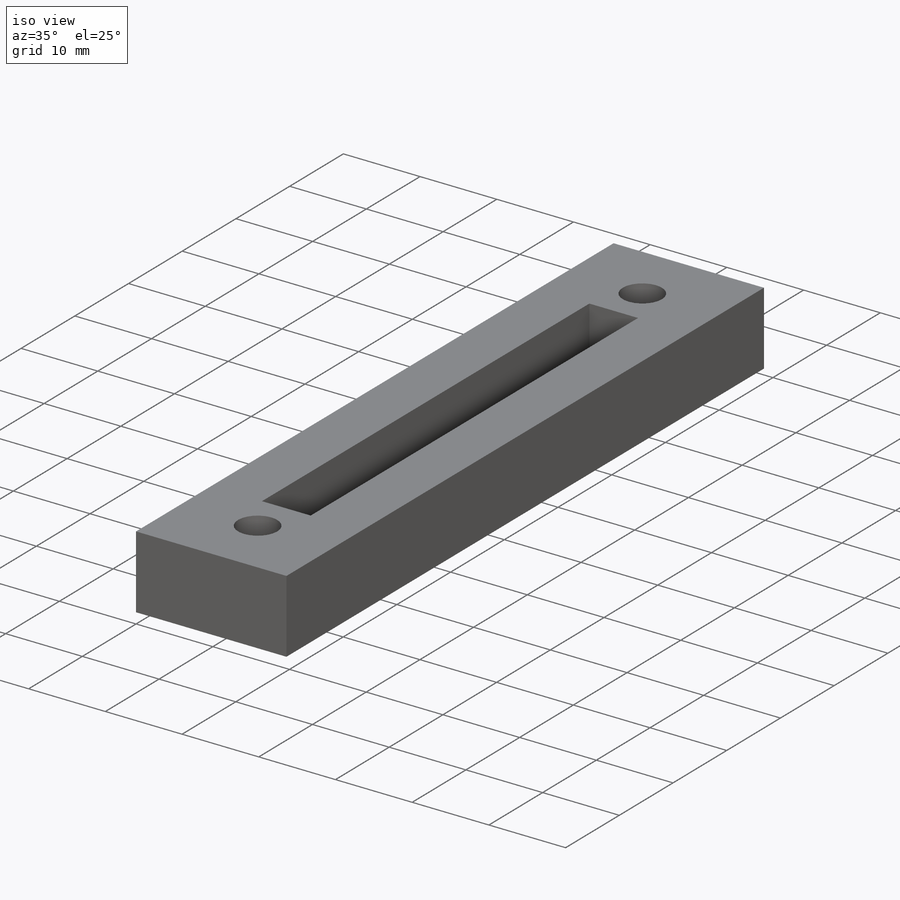
[diagram: iso view]
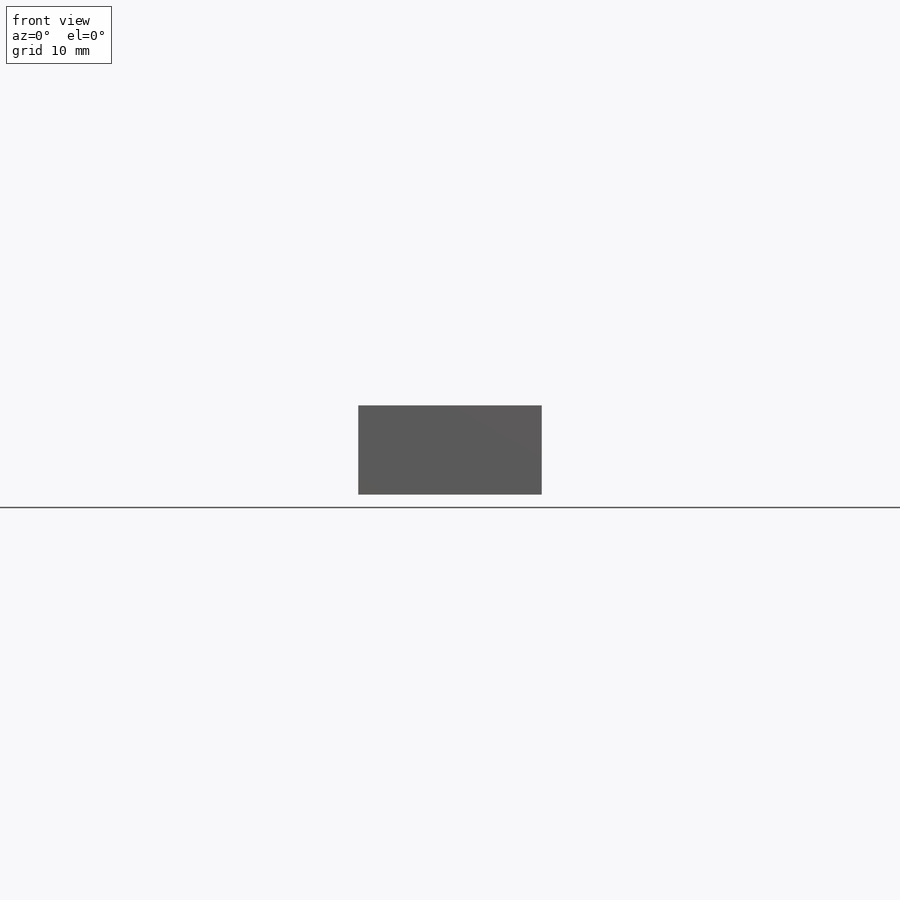
[diagram: front view]
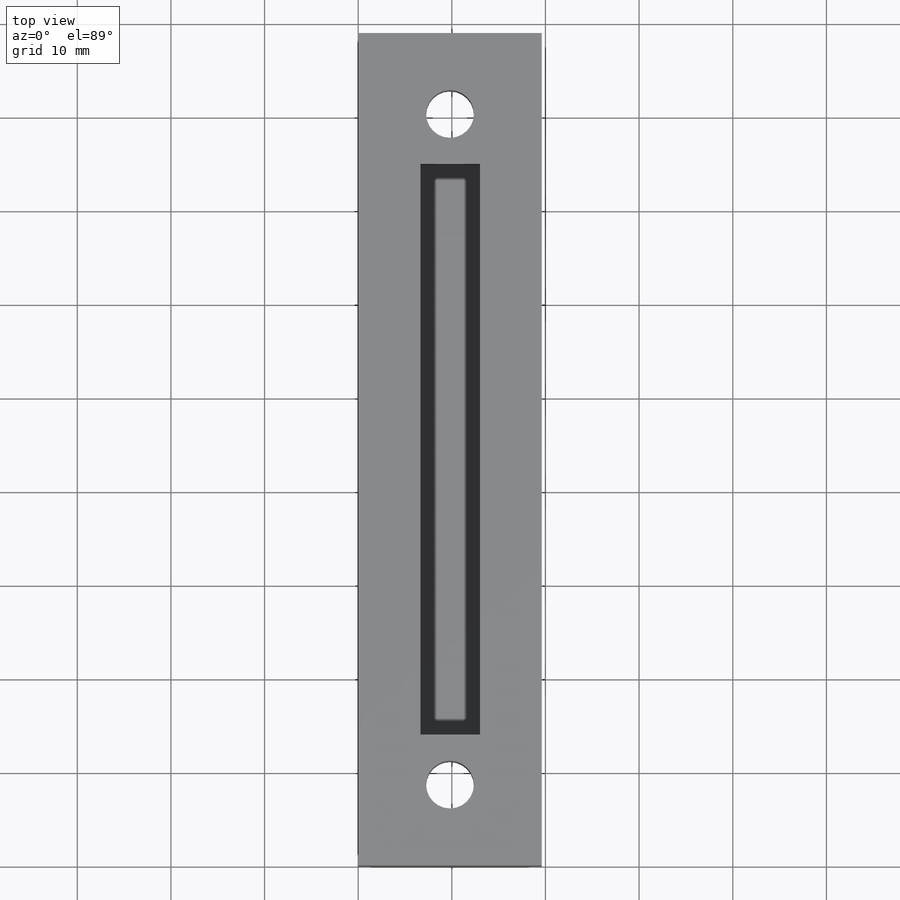
[diagram: top view]
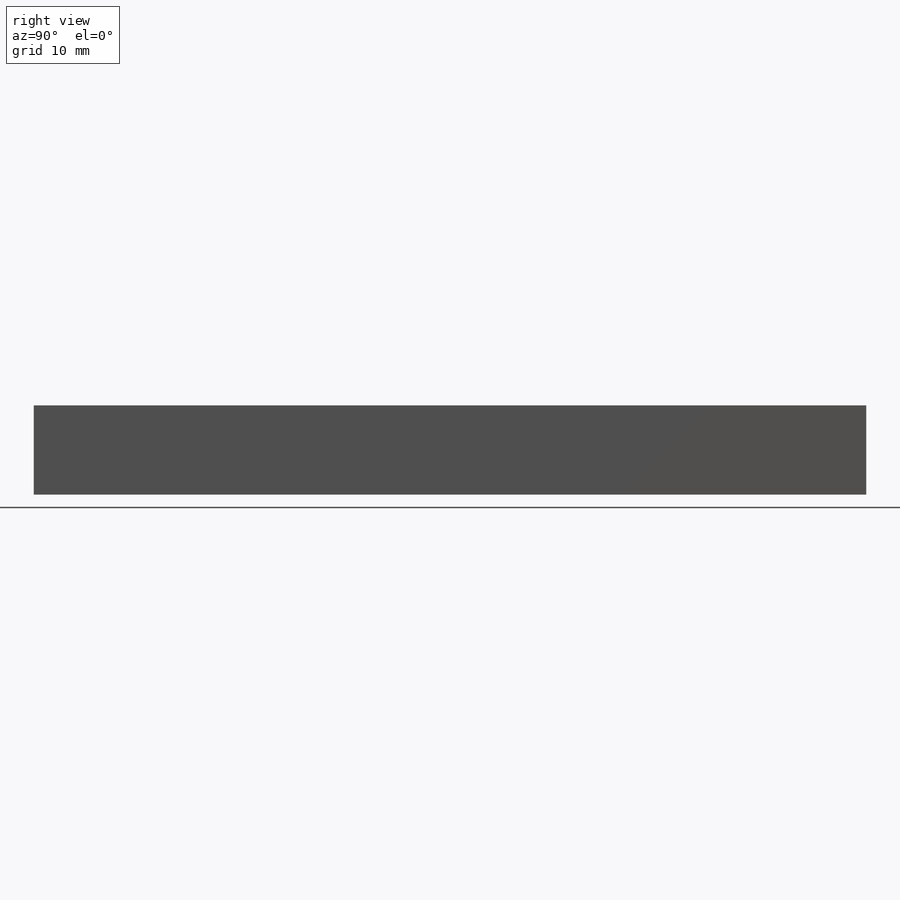
[diagram: right view]
SOLIDWORKS PART (.sldprt)
format: sldprt  version: not decoded by parser v0  size: 202,752 bytes
history: native  units: mm
features: sketch x4, thread x2, material x1, extrude x1, plane x1, cut_extrude x1, hole x1 (+11 scaffold rows collapsed)
feature tree (22):
  scaffold x11  (default folders/planes/origin — collapsed)
  material  "6061 Alloy"
  sketch  "Sketch1"  dims[D3=5.08mm D1=19.6088mm D2=88.9mm D4=71.628mm]
  extrude  "Boss-Extrude1"  Depth=9.525mm
  plane  "Plane1"
  sketch  "Sketch2"  dims[D1=6.35mm D2=60.96mm]
  cut_extrude  "Cut-Extrude1"  Depth=6.477mm
  hole  "#10-32 Tapped Hole4"  Diameter=5.1054mm Depth=16.51mm
  sketch  "Sketch4"
  sketch  "Sketch3"  dims[hole-wizard template sketch: 50 standard entries collapsed; hole parameters above]
  thread  "Hole Thread4"  Diameter=9.525mm  [1 undecoded]
  thread  "Hole Thread5"  Diameter=9.525mm  [1 undecoded]
decode coverage: 8 of 9 modeling features carry decoded parameters
note: ~ marks probable driven/reference dimensions
note: 2 parameter values undecoded
note: suppression state not decoded; provenance and decode notes live in map.json
